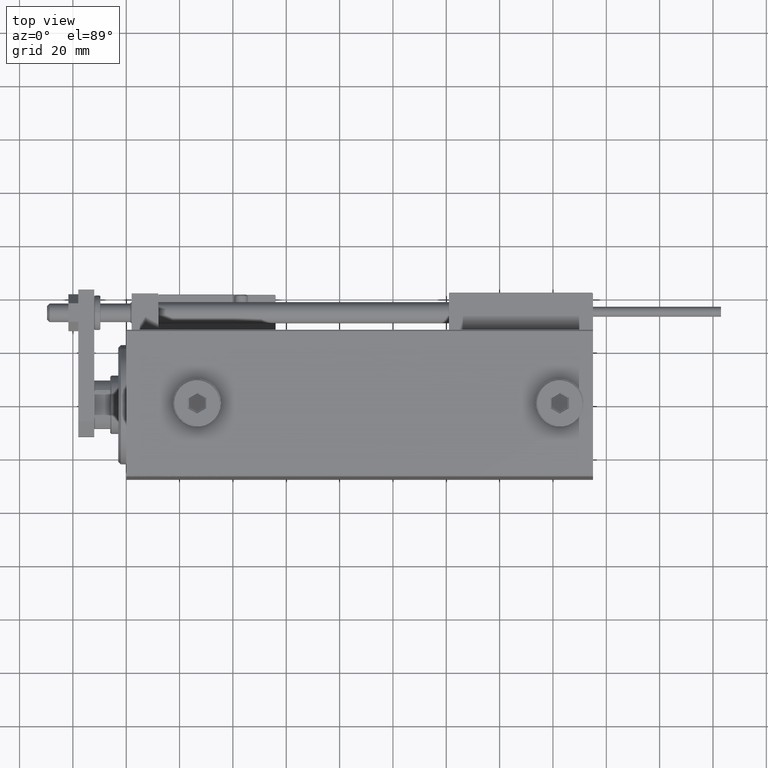
[diagram: clean part render]
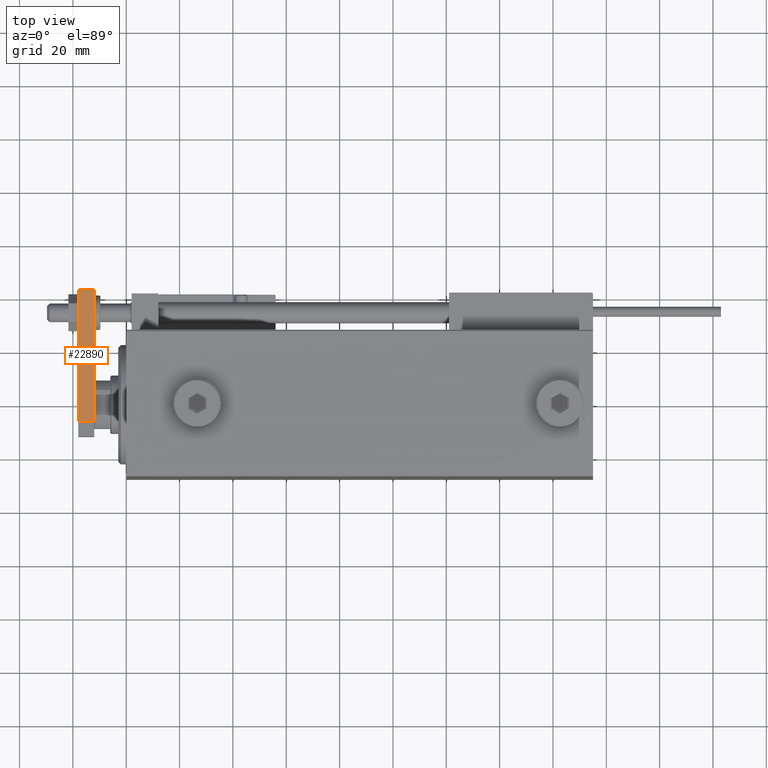
[diagram: same view with one face highlighted and labeled with its STEP entity id]
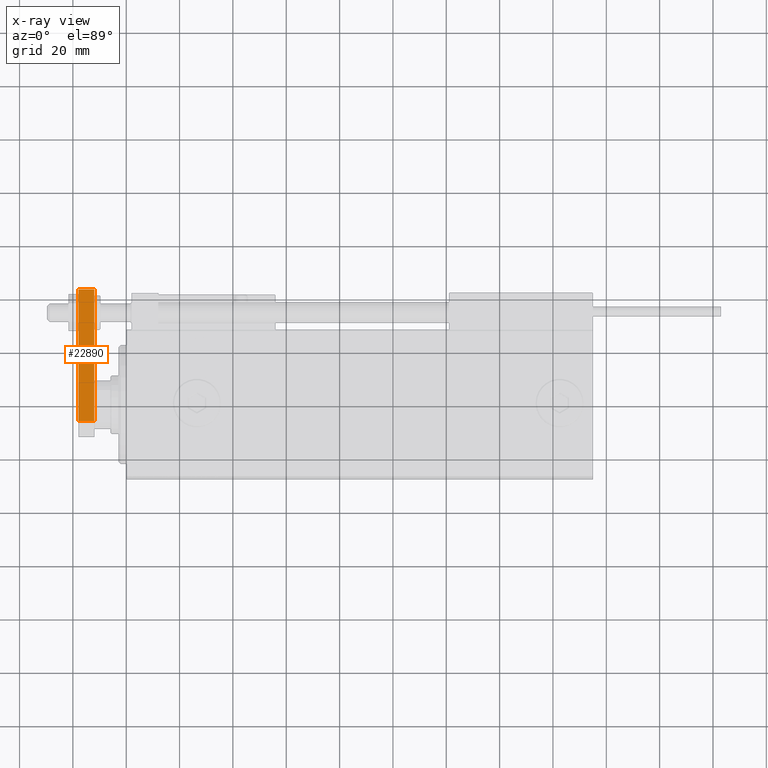
[diagram: x-ray of the same camera — body ghosted, the highlighted face saturated]
A machine part, top view. The second image highlights one B-rep face of the part: STEP entity #22890.
The next image is the same camera in x-ray: the body ghosted, the highlighted face saturated — about 0% of this face is hidden behind the body in this view.
In plain terms, the highlighted planar face has unit normal (-0, -0, -1).
Its self-contained STEP definition (entity closure, byte-faithful):
#213 = LINE ( 'NONE', #16126, #40599 ) ;
#2195 = VECTOR ( 'NONE', #38443, 1000.000000000000000 ) ;
#5104 = VERTEX_POINT ( 'NONE', #46478 ) ;
#5304 = CARTESIAN_POINT ( 'NONE',  ( 12.50000000000000355, 5.659999999999991260, 6.000000000000000000 ) ) ;
#10270 = EDGE_CURVE ( 'NONE', #5104, #13303, #213, .T. ) ;
#10823 = LINE ( 'NONE', #22527, #2195 ) ;
#10916 = PLANE ( 'NONE',  #34245 ) ;
#13303 = VERTEX_POINT ( 'NONE', #14997 ) ;
#14997 = CARTESIAN_POINT ( 'NONE',  ( 12.50000000000000000, 55.00000000000000000, 0.000000000000000000 ) ) ;
#15355 = CARTESIAN_POINT ( 'NONE',  ( 12.50000000000000355, 4.814824860968089633E-32, 6.000000000000000000 ) ) ;
#16126 = CARTESIAN_POINT ( 'NONE',  ( 12.50000000000000000, 55.00000000000000000, 6.000000000000000000 ) ) ;
#16886 = DIRECTION ( 'NONE',  ( -0.000000000000000000, -0.000000000000000000, -1.000000000000000000 ) ) ;
#17094 = VECTOR ( 'NONE', #29269, 1000.000000000000000 ) ;
#22527 = CARTESIAN_POINT ( 'NONE',  ( 12.50000000000000355, 4.814824860968089633E-32, 0.000000000000000000 ) ) ;
#22890 = ADVANCED_FACE ( 'NONE', ( #46095 ), #10916, .F. ) ;
#24908 = ORIENTED_EDGE ( 'NONE', *, *, #46763, .T. ) ;
#24997 = CARTESIAN_POINT ( 'NONE',  ( 12.50000000000000355, 4.814824860968089633E-32, 6.000000000000000000 ) ) ;
#26605 = CARTESIAN_POINT ( 'NONE',  ( 12.50000000000000355, 5.659999999999991260, 6.000000000000000000 ) ) ;
#26987 = ORIENTED_EDGE ( 'NONE', *, *, #42131, .F. ) ;
#29269 = DIRECTION ( 'NONE',  ( 0.000000000000000000, 0.000000000000000000, -1.000000000000000000 ) ) ;
#29781 = LINE ( 'NONE', #5304, #17094 ) ;
#34245 = AXIS2_PLACEMENT_3D ( 'NONE', #15355, #38268, #34894 ) ;
#34894 = DIRECTION ( 'NONE',  ( 6.308085367188389994E-17, -1.000000000000000000, 0.000000000000000000 ) ) ;
#38016 = LINE ( 'NONE', #24997, #43546 ) ;
#38268 = DIRECTION ( 'NONE',  ( -1.000000000000000000, -6.308085367188389994E-17, 0.000000000000000000 ) ) ;
#38443 = DIRECTION ( 'NONE',  ( -6.308085367188389994E-17, 1.000000000000000000, 0.000000000000000000 ) ) ;
#39244 = VERTEX_POINT ( 'NONE', #26605 ) ;
#40599 = VECTOR ( 'NONE', #16886, 1000.000000000000000 ) ;
#40634 = EDGE_LOOP ( 'NONE', ( #26987, #24908, #44714, #42665 ) ) ;
#42131 = EDGE_CURVE ( 'NONE', #39244, #5104, #38016, .T. ) ;
#42665 = ORIENTED_EDGE ( 'NONE', *, *, #10270, .F. ) ;
#43546 = VECTOR ( 'NONE', #45588, 1000.000000000000000 ) ;
#44714 = ORIENTED_EDGE ( 'NONE', *, *, #50073, .T. ) ;
#45588 = DIRECTION ( 'NONE',  ( -6.308085367188389994E-17, 1.000000000000000000, 0.000000000000000000 ) ) ;
#46095 = FACE_OUTER_BOUND ( 'NONE', #40634, .T. ) ;
#46478 = CARTESIAN_POINT ( 'NONE',  ( 12.50000000000000000, 55.00000000000000000, 6.000000000000000000 ) ) ;
#46763 = EDGE_CURVE ( 'NONE', #39244, #47232, #29781, .T. ) ;
#47232 = VERTEX_POINT ( 'NONE', #48903 ) ;
#48903 = CARTESIAN_POINT ( 'NONE',  ( 12.50000000000000355, 5.659999999999991260, 0.000000000000000000 ) ) ;
#50073 = EDGE_CURVE ( 'NONE', #47232, #13303, #10823, .T. ) ;